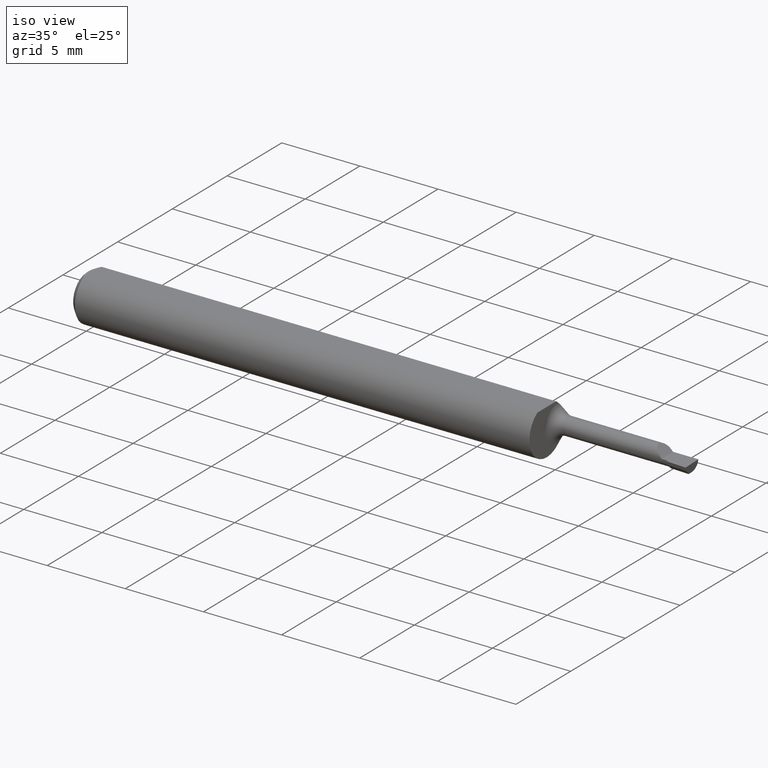
[diagram: clean part render]
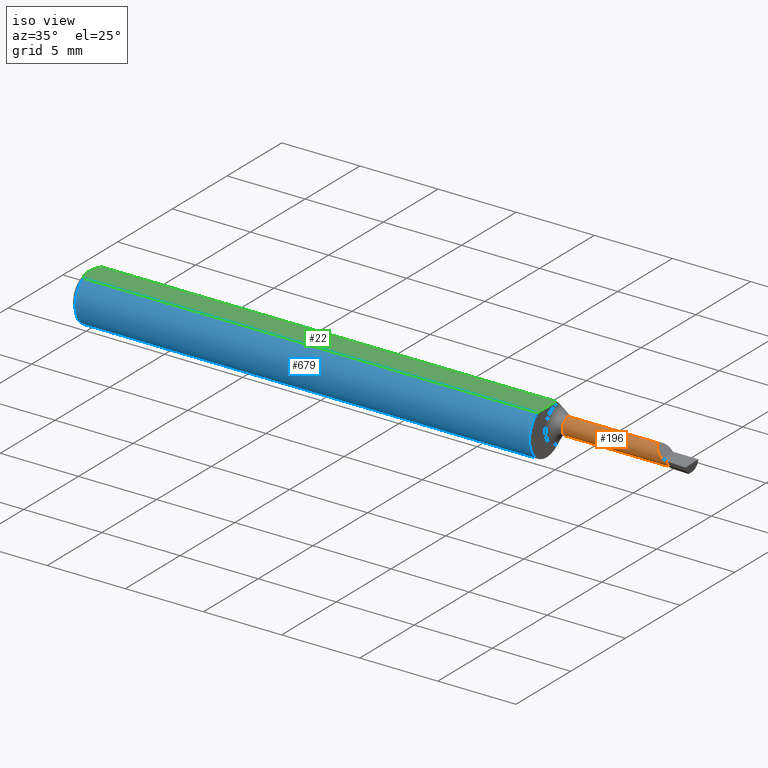
[diagram: same view with three faces highlighted in distinct colors, each labeled with its STEP entity id]
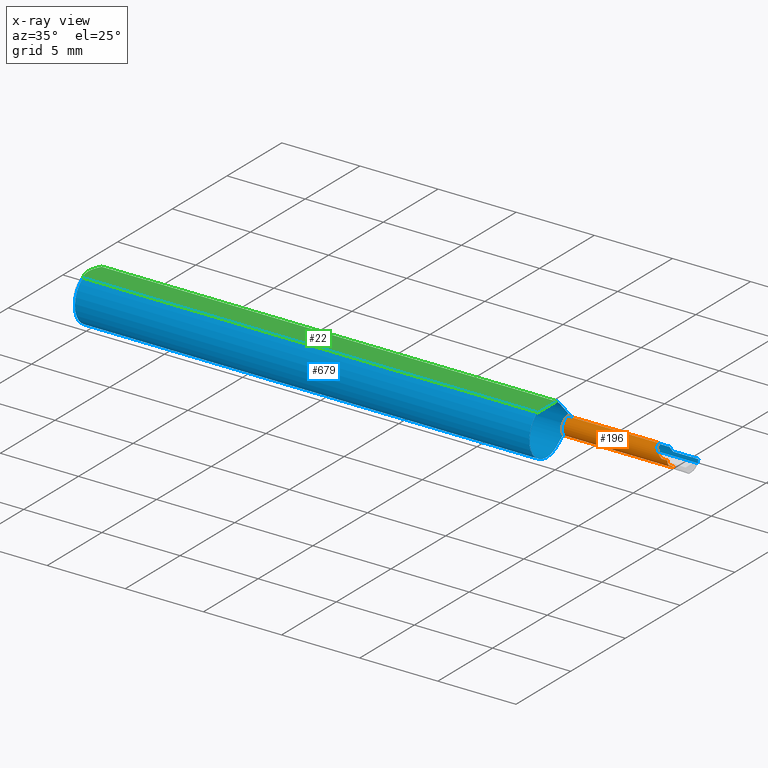
[diagram: x-ray of the same camera — body ghosted, the three highlighted faces saturated]
A machine part, iso view with three faces highlighted in distinct colors.
The next image is the same camera in x-ray (body ghosted, the three faces saturated) — at least one of them is partly hidden behind the body in this view.
Their STEP definitions:

[orange] entity #196 — the highlighted cylindrical surface (edge-blend (fillet) strip) has radius 0.5499 mm, axis along (-1, -0, -0).
#3 = CARTESIAN_POINT ( 'NONE',  ( 1.435000000000000053, 0.02034999999999996187, 7.469896857675718968E-18 ) ) ;
#6 = ORIENTED_EDGE ( 'NONE', *, *, #529, .F. ) ;
#10 = LINE ( 'NONE', #311, #53 ) ;
#16 = VECTOR ( 'NONE', #589, 39.37007874015748143 ) ;
#28 = CIRCLE ( 'NONE', #523, 0.02165000000000004768 ) ;
#31 = EDGE_LOOP ( 'NONE', ( #6, #560, #537, #143, #508, #377 ) ) ;
#36 = DIRECTION ( 'NONE',  ( 0.000000000000000000, 0.000000000000000000, 1.000000000000000000 ) ) ;
#53 = VECTOR ( 'NONE', #425, 39.37007874015748143 ) ;
#75 = VERTEX_POINT ( 'NONE', #220 ) ;
#81 = CARTESIAN_POINT ( 'NONE',  ( 0.000000000000000000, 0.04200000000000000955, 0.02165000000000002686 ) ) ;
#83 = CIRCLE ( 'NONE', #618, 0.02165000000000000951 ) ;
#87 = CARTESIAN_POINT ( 'NONE',  ( 1.413349999999999884, 0.04200000000000000955, 0.02165000000000002686 ) ) ;
#91 = EDGE_CURVE ( 'NONE', #434, #498, #10, .T. ) ;
#93 = DIRECTION ( 'NONE',  ( 0.000000000000000000, 0.000000000000000000, 1.000000000000000000 ) ) ;
#103 = CARTESIAN_POINT ( 'NONE',  ( 1.422317723625377450, 0.02034999999999997575, 0.01268227637462250416 ) ) ;
#140 = EDGE_CURVE ( 'NONE', #226, #498, #83, .T. ) ;
#143 = ORIENTED_EDGE ( 'NONE', *, *, #298, .F. ) ;
#148 = EDGE_CURVE ( 'NONE', #241, #75, #28, .T. ) ;
#171 = LINE ( 'NONE', #378, #16 ) ;
#196 = ADVANCED_FACE ( 'NONE', ( #301 ), #197, .T. ) ;
#197 = CYLINDRICAL_SURFACE ( 'NONE', #234, 0.02165000000000002686 ) ;
#220 = CARTESIAN_POINT ( 'NONE',  ( 1.185000000000000275, 0.04200000000000000955, 0.02165000000000004768 ) ) ;
#226 = VERTEX_POINT ( 'NONE', #340 ) ;
#234 = AXIS2_PLACEMENT_3D ( 'NONE', #667, #565, #93 ) ;
#238 = VERTEX_POINT ( 'NONE', #87 ) ;
#241 = VERTEX_POINT ( 'NONE', #550 ) ;
#247 = CARTESIAN_POINT ( 'NONE',  ( 1.413349999999999884, 0.04200000000000000955, 0.02165000000000002686 ) ) ;
#287 = DIRECTION ( 'NONE',  ( -1.000000000000000000, -0.000000000000000000, -0.000000000000000000 ) ) ;
#298 = EDGE_CURVE ( 'NONE', #238, #434, #359, .T. ) ;
#301 = FACE_OUTER_BOUND ( 'NONE', #31, .T. ) ;
#311 = CARTESIAN_POINT ( 'NONE',  ( 1.981042333644269815E-32, 0.02034999999999998269, 1.723822351771319809E-16 ) ) ;
#340 = CARTESIAN_POINT ( 'NONE',  ( 1.450000000000000178, 0.04200000000000000955, -0.02165000000000000951 ) ) ;
#353 = CARTESIAN_POINT ( 'NONE',  ( 1.185000000000000275, 0.04200000000000000955, 0.000000000000000000 ) ) ;
#355 = CARTESIAN_POINT ( 'NONE',  ( 1.413349999999999662, 0.02931772362537750018, 0.02165000000000002686 ) ) ;
#359 =( BOUNDED_CURVE ( )  B_SPLINE_CURVE ( 3, ( #247, #355, #103, #3 ),
 .UNSPECIFIED., .F., .T. ) 
 B_SPLINE_CURVE_WITH_KNOTS ( ( 4, 4 ),
 ( 0.000000000000000000, 1.570796326794896780 ),
 .UNSPECIFIED. ) 
 CURVE ( )  GEOMETRIC_REPRESENTATION_ITEM ( )  RATIONAL_B_SPLINE_CURVE ( ( 1.000000000000000000, 0.8047378541243649375, 0.8047378541243649375, 1.000000000000000000 ) ) 
 REPRESENTATION_ITEM ( '' )  );
#377 = ORIENTED_EDGE ( 'NONE', *, *, #148, .F. ) ;
#378 = CARTESIAN_POINT ( 'NONE',  ( 0.000000000000000000, 0.04200000000000000955, -0.02165000000000002686 ) ) ;
#425 = DIRECTION ( 'NONE',  ( 1.000000000000000000, 0.000000000000000000, 0.000000000000000000 ) ) ;
#434 = VERTEX_POINT ( 'NONE', #592 ) ;
#498 = VERTEX_POINT ( 'NONE', #546 ) ;
#508 = ORIENTED_EDGE ( 'NONE', *, *, #563, .T. ) ;
#523 = AXIS2_PLACEMENT_3D ( 'NONE', #353, #562, #36 ) ;
#529 = EDGE_CURVE ( 'NONE', #226, #241, #171, .T. ) ;
#537 = ORIENTED_EDGE ( 'NONE', *, *, #91, .F. ) ;
#546 = CARTESIAN_POINT ( 'NONE',  ( 1.450000000000000178, 0.02034999999999999656, 1.723822351771318823E-16 ) ) ;
#549 = LINE ( 'NONE', #81, #570 ) ;
#550 = CARTESIAN_POINT ( 'NONE',  ( 1.185000000000000275, 0.04200000000000000955, -0.02165000000000004768 ) ) ;
#560 = ORIENTED_EDGE ( 'NONE', *, *, #140, .T. ) ;
#562 = DIRECTION ( 'NONE',  ( -1.000000000000000000, -0.000000000000000000, -0.000000000000000000 ) ) ;
#563 = EDGE_CURVE ( 'NONE', #238, #75, #549, .T. ) ;
#565 = DIRECTION ( 'NONE',  ( -1.000000000000000000, -0.000000000000000000, -0.000000000000000000 ) ) ;
#570 = VECTOR ( 'NONE', #287, 39.37007874015748143 ) ;
#589 = DIRECTION ( 'NONE',  ( -1.000000000000000000, -0.000000000000000000, -0.000000000000000000 ) ) ;
#592 = CARTESIAN_POINT ( 'NONE',  ( 1.435000000000000053, 0.02034999999999996187, 7.469896857675718968E-18 ) ) ;
#609 = DIRECTION ( 'NONE',  ( -1.000000000000000000, -0.000000000000000000, -0.000000000000000000 ) ) ;
#617 = CARTESIAN_POINT ( 'NONE',  ( 1.450000000000000178, 0.04200000000000000955, 0.000000000000000000 ) ) ;
#618 = AXIS2_PLACEMENT_3D ( 'NONE', #617, #609, #664 ) ;
#664 = DIRECTION ( 'NONE',  ( 0.000000000000000000, 0.000000000000000000, 1.000000000000000000 ) ) ;
#667 = CARTESIAN_POINT ( 'NONE',  ( 0.000000000000000000, 0.04200000000000000955, 0.000000000000000000 ) ) ;

[blue] entity #679 — the highlighted cylindrical surface (edge-blend (fillet) strip) has radius 1.5837 mm, axis along (-1, -0, -0).
#2 = CIRCLE ( 'NONE', #352, 0.06235000000000000264 ) ;
#5 = CARTESIAN_POINT ( 'NONE',  ( 1.160002154187601331, 0.04179221831807067300, -0.04627107114684035627 ) ) ;
#11 = EDGE_LOOP ( 'NONE', ( #204, #123, #132, #439, #633, #126, #202, #164, #24, #61, #447, #655, #276, #601, #477 ) ) ;
#13 = CARTESIAN_POINT ( 'NONE',  ( 1.498307515265092205, 0.06234999999999984999, 4.252919012001033187E-19 ) ) ;
#21 = CARTESIAN_POINT ( 'NONE',  ( 1.164503367413919577, 0.05514048125192551331, -0.02935827858479101576 ) ) ;
#24 = ORIENTED_EDGE ( 'NONE', *, *, #44, .F. ) ;
#25 = B_SPLINE_CURVE_WITH_KNOTS ( 'NONE', 3,
 ( #207, #416, #628, #576, #262, #210, #213, #21, #534, #73, #174, #274 ),
 .UNSPECIFIED., .F., .F.,
 ( 4, 2, 2, 2, 2, 4 ),
 ( 1.956466010703177504E-07, 0.0001677086840062927419, 0.0003352217214115151282, 0.0006702477962219671650, 0.001005273871032419039, 0.001340299945842871347 ),
 .UNSPECIFIED. ) ;
#41 = CIRCLE ( 'NONE', #428, 0.06235000000000000264 ) ;
#42 = VERTEX_POINT ( 'NONE', #422 ) ;
#44 = EDGE_CURVE ( 'NONE', #69, #531, #41, .T. ) ;
#46 = CARTESIAN_POINT ( 'NONE',  ( 1.498307515265092205, 0.06234999999999984999, 4.252919012001033187E-19 ) ) ;
#54 = VECTOR ( 'NONE', #645, 39.37007874015748143 ) ;
#61 = ORIENTED_EDGE ( 'NONE', *, *, #561, .T. ) ;
#65 = CARTESIAN_POINT ( 'NONE',  ( 0.01500000000000185039, -0.03386738844380016850, 0.05235000000000000070 ) ) ;
#69 = VERTEX_POINT ( 'NONE', #376 ) ;
#73 = CARTESIAN_POINT ( 'NONE',  ( 1.160670077248453946, 0.04815584287052725176, -0.03982895007941800181 ) ) ;
#78 = LINE ( 'NONE', #283, #676 ) ;
#85 = VECTOR ( 'NONE', #363, 39.37007874015748143 ) ;
#96 = VERTEX_POINT ( 'NONE', #371 ) ;
#105 = DIRECTION ( 'NONE',  ( 0.000000000000000000, 0.000000000000000000, 1.000000000000000000 ) ) ;
#107 = EDGE_CURVE ( 'NONE', #272, #463, #343, .T. ) ;
#108 = CARTESIAN_POINT ( 'NONE',  ( 1.317500000000000115, 0.06169999999999998402, 0.008979560122856904483 ) ) ;
#111 = CIRCLE ( 'NONE', #514, 0.06235000000000000264 ) ;
#118 = DIRECTION ( 'NONE',  ( 0.000000000000000000, 0.000000000000000000, 1.000000000000000000 ) ) ;
#121 = CARTESIAN_POINT ( 'NONE',  ( 0.01500000000000000465, 0.000000000000000000, -0.06235000000000000264 ) ) ;
#123 = ORIENTED_EDGE ( 'NONE', *, *, #107, .T. ) ;
#124 = CARTESIAN_POINT ( 'NONE',  ( 1.175584872132278358, 0.06074967455721213411, 0.01413090964346022486 ) ) ;
#126 = ORIENTED_EDGE ( 'NONE', *, *, #406, .T. ) ;
#132 = ORIENTED_EDGE ( 'NONE', *, *, #499, .T. ) ;
#133 = CARTESIAN_POINT ( 'NONE',  ( 1.435000000000000053, 0.06234999999999984999, 7.469896857675718968E-18 ) ) ;
#145 = B_SPLINE_CURVE_WITH_KNOTS ( 'NONE', 3,
 ( #270, #387, #324, #328 ),
 .UNSPECIFIED., .F., .F.,
 ( 4, 4 ),
 ( 4.582666268723168045E-07, 2.170104865268451287E-05 ),
 .UNSPECIFIED. ) ;
#156 = CARTESIAN_POINT ( 'NONE',  ( 1.159999999999991482, 0.04158309226468336756, -0.04645910121876680593 ) ) ;
#160 = CARTESIAN_POINT ( 'NONE',  ( 0.01500000000000000465, 0.000000000000000000, 0.000000000000000000 ) ) ;
#164 = ORIENTED_EDGE ( 'NONE', *, *, #649, .F. ) ;
#168 = CARTESIAN_POINT ( 'NONE',  ( 1.171137345355671933, 0.05951103980767498414, 0.01888626235242482979 ) ) ;
#169 = CARTESIAN_POINT ( 'NONE',  ( 1.497630533948310916, 0.06213295572546700257, -0.006004651787055691192 ) ) ;
#174 = CARTESIAN_POINT ( 'NONE',  ( 1.160074194741583575, 0.04526839251566676381, -0.04310279966243765054 ) ) ;
#179 = CARTESIAN_POINT ( 'NONE',  ( 1.177175290836501409, 0.06107452517360630745, 0.01261403876978727141 ) ) ;
#180 = AXIS2_PLACEMENT_3D ( 'NONE', #225, #590, #118 ) ;
#182 = DIRECTION ( 'NONE',  ( -1.000000000000000000, -0.000000000000000000, -0.000000000000000000 ) ) ;
#189 = VECTOR ( 'NONE', #504, 39.37007874015748143 ) ;
#202 = ORIENTED_EDGE ( 'NONE', *, *, #519, .T. ) ;
#204 = ORIENTED_EDGE ( 'NONE', *, *, #659, .T. ) ;
#207 = CARTESIAN_POINT ( 'NONE',  ( 1.185000000000000275, 0.06170000000000000484, -0.008979560122856930504 ) ) ;
#210 = CARTESIAN_POINT ( 'NONE',  ( 1.171164219611748880, 0.05951808255707905643, -0.01885829980402589645 ) ) ;
#213 = CARTESIAN_POINT ( 'NONE',  ( 1.168638811239069764, 0.05833681936465647672, -0.02234271023335328982 ) ) ;
#215 = EDGE_CURVE ( 'NONE', #96, #297, #653, .T. ) ;
#221 = VERTEX_POINT ( 'NONE', #455 ) ;
#223 = CARTESIAN_POINT ( 'NONE',  ( 1.160006460274299878, 0.04199999999999771277, 0.04608169376227606862 ) ) ;
#225 = CARTESIAN_POINT ( 'NONE',  ( 0.000000000000000000, 0.000000000000000000, 0.000000000000000000 ) ) ;
#237 = B_SPLINE_CURVE_WITH_KNOTS ( 'NONE', 3,
 ( #462, #5, #156, #530 ),
 .UNSPECIFIED., .F., .F.,
 ( 4, 4 ),
 ( 0.001340299945842871347, 0.001361598575378359429 ),
 .UNSPECIFIED. ) ;
#252 = CARTESIAN_POINT ( 'NONE',  ( 1.160000000000000142, 0.000000000000000000, 0.000000000000000000 ) ) ;
#258 = CARTESIAN_POINT ( 'NONE',  ( 1.160000000000000142, -0.03386738844380016850, 0.05235000000000000070 ) ) ;
#262 = CARTESIAN_POINT ( 'NONE',  ( 1.175565359643935714, 0.06074446073968790827, -0.01415138756931504788 ) ) ;
#266 = EDGE_CURVE ( 'NONE', #487, #268, #412, .T. ) ;
#268 = VERTEX_POINT ( 'NONE', #133 ) ;
#270 = CARTESIAN_POINT ( 'NONE',  ( 1.160000000000000142, 0.04137261904761900533, 0.04664578108618819968 ) ) ;
#272 = VERTEX_POINT ( 'NONE', #46 ) ;
#274 = CARTESIAN_POINT ( 'NONE',  ( 1.160006460274302986, 0.04200000000015000762, -0.04608169376213724217 ) ) ;
#276 = ORIENTED_EDGE ( 'NONE', *, *, #475, .T. ) ;
#283 = CARTESIAN_POINT ( 'NONE',  ( 1.317500000000000115, 0.06169999999999998402, -0.008979560122856904483 ) ) ;
#292 = CARTESIAN_POINT ( 'NONE',  ( 1.160000000000000142, 0.04137261904761900533, 0.04664578108618819968 ) ) ;
#296 = CARTESIAN_POINT ( 'NONE',  ( 1.426020439877143220, 0.06170000000000000484, 0.008979560122856816012 ) ) ;
#297 = VERTEX_POINT ( 'NONE', #292 ) ;
#300 = DIRECTION ( 'NONE',  ( 0.000000000000000000, 0.000000000000000000, 1.000000000000000000 ) ) ;
#304 = CARTESIAN_POINT ( 'NONE',  ( 1.160000000000000142, 0.000000000000000000, 0.000000000000000000 ) ) ;
#316 = CARTESIAN_POINT ( 'NONE',  ( 1.185000000000000275, 0.06170000000000000484, -0.008979560122856930504 ) ) ;
#324 = CARTESIAN_POINT ( 'NONE',  ( 1.160002158776226588, 0.04179243973303148341, 0.04627086934374564919 ) ) ;
#328 = CARTESIAN_POINT ( 'NONE',  ( 1.160006460274299878, 0.04199999999999771277, 0.04608169376227606862 ) ) ;
#336 = CARTESIAN_POINT ( 'NONE',  ( 1.426020439877143220, 0.06170000000000000484, 0.008979560122856816012 ) ) ;
#339 = EDGE_CURVE ( 'NONE', #482, #487, #567, .T. ) ;
#343 =( BOUNDED_CURVE ( )  B_SPLINE_CURVE ( 3, ( #13, #429, #169, #587 ),
 .UNSPECIFIED., .F., .T. ) 
 B_SPLINE_CURVE_WITH_KNOTS ( ( 4, 4 ),
 ( 5.009623706381322705, 5.154144874936619658 ),
 .UNSPECIFIED. ) 
 CURVE ( )  GEOMETRIC_REPRESENTATION_ITEM ( )  RATIONAL_B_SPLINE_CURVE ( ( 1.000000000000000000, 0.9982602265499040950, 0.9982602265499040950, 1.000000000000000000 ) ) 
 REPRESENTATION_ITEM ( '' )  );
#346 = VERTEX_POINT ( 'NONE', #316 ) ;
#352 = AXIS2_PLACEMENT_3D ( 'NONE', #304, #461, #105 ) ;
#363 = DIRECTION ( 'NONE',  ( 1.000000000000000000, 0.000000000000000000, 0.000000000000000000 ) ) ;
#366 = CARTESIAN_POINT ( 'NONE',  ( 1.981042333644269815E-32, 0.06234999999999999570, 1.723822351771319809E-16 ) ) ;
#371 = CARTESIAN_POINT ( 'NONE',  ( 1.160000000000000142, 0.03386738844375224156, 0.05235000000000000070 ) ) ;
#374 = CARTESIAN_POINT ( 'NONE',  ( 1.182762534547911804, 0.06169999999999994933, 0.008979560122857185508 ) ) ;
#376 = CARTESIAN_POINT ( 'NONE',  ( 0.01500000000000000465, 0.03386738844375223462, 0.05234999999999997988 ) ) ;
#381 = CARTESIAN_POINT ( 'NONE',  ( 1.168668118509244236, 0.05835572319906700417, 0.02229702727151923816 ) ) ;
#387 = CARTESIAN_POINT ( 'NONE',  ( 1.160000000000000142, 0.04158331714061497264, 0.04645890176435896884 ) ) ;
#406 = EDGE_CURVE ( 'NONE', #221, #591, #2, .T. ) ;
#412 =( BOUNDED_CURVE ( )  B_SPLINE_CURVE ( 3, ( #296, #558, #670, #603 ),
 .UNSPECIFIED., .F., .T. ) 
 B_SPLINE_CURVE_WITH_KNOTS ( ( 4, 4 ),
 ( 1.426275158239600493, 1.570796326794896558 ),
 .UNSPECIFIED. ) 
 CURVE ( )  GEOMETRIC_REPRESENTATION_ITEM ( )  RATIONAL_B_SPLINE_CURVE ( ( 1.000000000000000000, 0.9982602265499040950, 0.9982602265499040950, 1.000000000000000000 ) ) 
 REPRESENTATION_ITEM ( '' )  );
#413 = DIRECTION ( 'NONE',  ( 1.000000000000000000, 0.000000000000000000, 0.000000000000000000 ) ) ;
#416 = CARTESIAN_POINT ( 'NONE',  ( 1.182753018252281185, 0.06170000000000001178, -0.008979560122856961729 ) ) ;
#419 = CYLINDRICAL_SURFACE ( 'NONE', #180, 0.06235000000000000264 ) ;
#420 = CARTESIAN_POINT ( 'NONE',  ( 1.160006460274302986, 0.04200000000015000762, -0.04608169376213724217 ) ) ;
#422 = CARTESIAN_POINT ( 'NONE',  ( 1.160006460274299878, 0.04199999999999771277, 0.04608169376227606862 ) ) ;
#427 = LINE ( 'NONE', #639, #54 ) ;
#428 = AXIS2_PLACEMENT_3D ( 'NONE', #160, #182, #580 ) ;
#429 = CARTESIAN_POINT ( 'NONE',  ( 1.497964787728959912, 0.06235000000000000264, -0.003006248537069734598 ) ) ;
#430 = EDGE_CURVE ( 'NONE', #346, #575, #25, .T. ) ;
#436 = EDGE_CURVE ( 'NONE', #297, #42, #145, .T. ) ;
#439 = ORIENTED_EDGE ( 'NONE', *, *, #430, .T. ) ;
#445 = DIRECTION ( 'NONE',  ( -1.000000000000000000, -0.000000000000000000, -0.000000000000000000 ) ) ;
#447 = ORIENTED_EDGE ( 'NONE', *, *, #215, .T. ) ;
#454 = VERTEX_POINT ( 'NONE', #65 ) ;
#455 = CARTESIAN_POINT ( 'NONE',  ( 1.160000000000000142, 0.04137261904761900533, -0.04664578108618819968 ) ) ;
#461 = DIRECTION ( 'NONE',  ( -1.000000000000000000, -0.000000000000000000, -0.000000000000000000 ) ) ;
#462 = CARTESIAN_POINT ( 'NONE',  ( 1.160006460274302986, 0.04200000000015000762, -0.04608169376213724217 ) ) ;
#463 = VERTEX_POINT ( 'NONE', #483 ) ;
#475 = EDGE_CURVE ( 'NONE', #42, #482, #627, .T. ) ;
#477 = ORIENTED_EDGE ( 'NONE', *, *, #266, .T. ) ;
#479 = AXIS2_PLACEMENT_3D ( 'NONE', #252, #445, #300 ) ;
#482 = VERTEX_POINT ( 'NONE', #542 ) ;
#483 = CARTESIAN_POINT ( 'NONE',  ( 1.497306498500703631, 0.06169999999999998402, -0.008979560122856904483 ) ) ;
#485 = CARTESIAN_POINT ( 'NONE',  ( 1.185000000000000275, 0.06169999999999831869, 0.008979560122860611587 ) ) ;
#487 = VERTEX_POINT ( 'NONE', #336 ) ;
#489 = DIRECTION ( 'NONE',  ( -1.000000000000000000, -0.000000000000000000, -0.000000000000000000 ) ) ;
#499 = EDGE_CURVE ( 'NONE', #463, #346, #78, .T. ) ;
#502 = VECTOR ( 'NONE', #413, 39.37007874015748143 ) ;
#504 = DIRECTION ( 'NONE',  ( 1.000000000000000000, 0.000000000000000000, 0.000000000000000000 ) ) ;
#514 = AXIS2_PLACEMENT_3D ( 'NONE', #646, #517, #525 ) ;
#517 = DIRECTION ( 'NONE',  ( -1.000000000000000000, -0.000000000000000000, -0.000000000000000000 ) ) ;
#519 = EDGE_CURVE ( 'NONE', #591, #454, #427, .T. ) ;
#525 = DIRECTION ( 'NONE',  ( 0.000000000000000000, 0.000000000000000000, 1.000000000000000000 ) ) ;
#530 = CARTESIAN_POINT ( 'NONE',  ( 1.160000000000000142, 0.04137261904761900533, -0.04664578108618819968 ) ) ;
#531 = VERTEX_POINT ( 'NONE', #121 ) ;
#534 = CARTESIAN_POINT ( 'NONE',  ( 1.162870761441107348, 0.05308346109616995240, -0.03297691048371718253 ) ) ;
#535 = LINE ( 'NONE', #366, #85 ) ;
#542 = CARTESIAN_POINT ( 'NONE',  ( 1.185000000000000275, 0.06169999999999831869, 0.008979560122860611587 ) ) ;
#558 = CARTESIAN_POINT ( 'NONE',  ( 1.428995348212944494, 0.06213295572546700951, 0.006004651787055659100 ) ) ;
#561 = EDGE_CURVE ( 'NONE', #69, #96, #669, .T. ) ;
#567 = LINE ( 'NONE', #108, #502 ) ;
#575 = VERTEX_POINT ( 'NONE', #420 ) ;
#576 = CARTESIAN_POINT ( 'NONE',  ( 1.177152351167835453, 0.06107065959994136678, -0.01263339011355590902 ) ) ;
#580 = DIRECTION ( 'NONE',  ( 0.000000000000000000, 0.000000000000000000, 1.000000000000000000 ) ) ;
#587 = CARTESIAN_POINT ( 'NONE',  ( 1.497306498500703631, 0.06169999999999998402, -0.008979560122856904483 ) ) ;
#590 = DIRECTION ( 'NONE',  ( -1.000000000000000000, -0.000000000000000000, -0.000000000000000000 ) ) ;
#591 = VERTEX_POINT ( 'NONE', #258 ) ;
#595 = CARTESIAN_POINT ( 'NONE',  ( 1.180731329014794495, 0.06154711322920823624, 0.01005805410694262346 ) ) ;
#598 = CARTESIAN_POINT ( 'NONE',  ( 0.000000000000000000, 0.03386738844375223462, 0.05234999999999997988 ) ) ;
#601 = ORIENTED_EDGE ( 'NONE', *, *, #339, .T. ) ;
#603 = CARTESIAN_POINT ( 'NONE',  ( 1.435000000000000053, 0.06234999999999984999, 7.469896857675718968E-18 ) ) ;
#627 = B_SPLINE_CURVE_WITH_KNOTS ( 'NONE', 3,
 ( #223, #651, #648, #381, #168, #124, #179, #595, #374, #485 ),
 .UNSPECIFIED., .F., .F.,
 ( 4, 2, 2, 2, 4 ),
 ( 2.170104865268451287E-05, 0.0006888475183558678046, 0.001022420753207459523, 0.001189207370633258961, 0.001355993988059058398 ),
 .UNSPECIFIED. ) ;
#628 = CARTESIAN_POINT ( 'NONE',  ( 1.180717554203212005, 0.06154609117734802237, -0.01006512148574299423 ) ) ;
#633 = ORIENTED_EDGE ( 'NONE', *, *, #644, .T. ) ;
#635 = FACE_OUTER_BOUND ( 'NONE', #11, .T. ) ;
#639 = CARTESIAN_POINT ( 'NONE',  ( 0.000000000000000000, -0.03386738844375222768, 0.05234999999999997988 ) ) ;
#644 = EDGE_CURVE ( 'NONE', #575, #221, #237, .T. ) ;
#645 = DIRECTION ( 'NONE',  ( -1.000000000000000000, -0.000000000000000000, -0.000000000000000000 ) ) ;
#646 = CARTESIAN_POINT ( 'NONE',  ( 0.01500000000000000465, 0.000000000000000000, 0.000000000000000000 ) ) ;
#648 = CARTESIAN_POINT ( 'NONE',  ( 1.162421881751718900, 0.05353913003532601023, 0.03288138494637238285 ) ) ;
#649 = EDGE_CURVE ( 'NONE', #531, #454, #111, .T. ) ;
#651 = CARTESIAN_POINT ( 'NONE',  ( 1.160141552243445950, 0.04851859531340436960, 0.04014048412325036536 ) ) ;
#653 = CIRCLE ( 'NONE', #479, 0.06235000000000000264 ) ;
#655 = ORIENTED_EDGE ( 'NONE', *, *, #436, .T. ) ;
#659 = EDGE_CURVE ( 'NONE', #268, #272, #535, .T. ) ;
#669 = LINE ( 'NONE', #598, #189 ) ;
#670 = CARTESIAN_POINT ( 'NONE',  ( 1.431993751462930842, 0.06235000000000000958, 0.003006248537069719420 ) ) ;
#676 = VECTOR ( 'NONE', #489, 39.37007874015748143 ) ;
#679 = ADVANCED_FACE ( 'NONE', ( #635 ), #419, .T. ) ;

[green] entity #22 — the highlighted planar face has unit normal (0, -0, -1).
#1 = DIRECTION ( 'NONE',  ( 0.000000000000000000, -7.598598113218357399E-17, -1.000000000000000000 ) ) ;
#22 = ADVANCED_FACE ( 'NONE', ( #637 ), #632, .F. ) ;
#50 = CARTESIAN_POINT ( 'NONE',  ( 0.004999999999989933504, 7.898418140378181697E-16, 0.05235000000000000070 ) ) ;
#54 = VECTOR ( 'NONE', #645, 39.37007874015748143 ) ;
#65 = CARTESIAN_POINT ( 'NONE',  ( 0.01500000000000185039, -0.03386738844380016850, 0.05235000000000000070 ) ) ;
#69 = VERTEX_POINT ( 'NONE', #376 ) ;
#80 = ORIENTED_EDGE ( 'NONE', *, *, #624, .F. ) ;
#96 = VERTEX_POINT ( 'NONE', #371 ) ;
#129 = ORIENTED_EDGE ( 'NONE', *, *, #411, .T. ) ;
#159 = CARTESIAN_POINT ( 'NONE',  ( 0.004999999999989933504, 7.898418140378181697E-16, 0.05235000000000000070 ) ) ;
#163 = ORIENTED_EDGE ( 'NONE', *, *, #519, .F. ) ;
#189 = VECTOR ( 'NONE', #504, 39.37007874015748143 ) ;
#192 = ORIENTED_EDGE ( 'NONE', *, *, #384, .F. ) ;
#254 = CARTESIAN_POINT ( 'NONE',  ( 0.004999999999999268051, 0.005945714695019509340, 0.05235000000000000070 ) ) ;
#255 = AXIS2_PLACEMENT_3D ( 'NONE', #629, #1, #319 ) ;
#258 = CARTESIAN_POINT ( 'NONE',  ( 1.160000000000000142, -0.03386738844380016850, 0.05235000000000000070 ) ) ;
#259 = CARTESIAN_POINT ( 'NONE',  ( 0.009669996313769781138, 0.02323004575534280344, 0.05234999999999997988 ) ) ;
#265 = CARTESIAN_POINT ( 'NONE',  ( 0.006064493299689846517, 0.01189382783781396842, 0.05235000000000000764 ) ) ;
#282 = B_SPLINE_CURVE_WITH_KNOTS ( 'NONE', 3,
 ( #468, #631, #471, #317, #586, #159 ),
 .UNSPECIFIED., .F., .F.,
 ( 4, 2, 4 ),
 ( 0.002133667072902290657, 0.002585433046183636171, 0.003037199019464981685 ),
 .UNSPECIFIED. ) ;
#317 = CARTESIAN_POINT ( 'NONE',  ( 0.006057557792978136152, -0.01187252718384440922, 0.05234999999999998682 ) ) ;
#319 = DIRECTION ( 'NONE',  ( 0.000000000000000000, 1.000000000000000000, -7.598598113218357399E-17 ) ) ;
#370 = VECTOR ( 'NONE', #623, 39.37007874015748143 ) ;
#371 = CARTESIAN_POINT ( 'NONE',  ( 1.160000000000000142, 0.03386738844375224156, 0.05235000000000000070 ) ) ;
#376 = CARTESIAN_POINT ( 'NONE',  ( 0.01500000000000000465, 0.03386738844375223462, 0.05234999999999997988 ) ) ;
#384 = EDGE_CURVE ( 'NONE', #541, #69, #509, .T. ) ;
#411 = EDGE_CURVE ( 'NONE', #591, #96, #458, .T. ) ;
#427 = LINE ( 'NONE', #639, #54 ) ;
#454 = VERTEX_POINT ( 'NONE', #65 ) ;
#458 = LINE ( 'NONE', #684, #370 ) ;
#468 = CARTESIAN_POINT ( 'NONE',  ( 0.01500000000000185039, -0.03386738844380016850, 0.05235000000000000070 ) ) ;
#471 = CARTESIAN_POINT ( 'NONE',  ( 0.009678036133109300596, -0.02325481837211496039, 0.05235000000000000070 ) ) ;
#504 = DIRECTION ( 'NONE',  ( 1.000000000000000000, 0.000000000000000000, 0.000000000000000000 ) ) ;
#509 = B_SPLINE_CURVE_WITH_KNOTS ( 'NONE', 3,
 ( #50, #254, #265, #259, #620, #625 ),
 .UNSPECIFIED., .F., .F.,
 ( 4, 2, 4 ),
 ( 0.003037199019464981685, 0.003488061124369675782, 0.003938923229274369879 ),
 .UNSPECIFIED. ) ;
#519 = EDGE_CURVE ( 'NONE', #591, #454, #427, .T. ) ;
#536 = EDGE_LOOP ( 'NONE', ( #163, #129, #638, #192, #80 ) ) ;
#541 = VERTEX_POINT ( 'NONE', #616 ) ;
#561 = EDGE_CURVE ( 'NONE', #69, #96, #669, .T. ) ;
#586 = CARTESIAN_POINT ( 'NONE',  ( 0.004999999999998882075, -0.005957634400466951113, 0.05235000000000000070 ) ) ;
#591 = VERTEX_POINT ( 'NONE', #258 ) ;
#598 = CARTESIAN_POINT ( 'NONE',  ( 0.000000000000000000, 0.03386738844375223462, 0.05234999999999997988 ) ) ;
#616 = CARTESIAN_POINT ( 'NONE',  ( 0.004999999999989933504, 7.898418140378181697E-16, 0.05235000000000000070 ) ) ;
#620 = CARTESIAN_POINT ( 'NONE',  ( 0.01218518006020414754, 0.02868529347538064517, 0.05234999999999998682 ) ) ;
#623 = DIRECTION ( 'NONE',  ( 0.000000000000000000, 1.000000000000000000, -7.598598113218357399E-17 ) ) ;
#624 = EDGE_CURVE ( 'NONE', #454, #541, #282, .T. ) ;
#625 = CARTESIAN_POINT ( 'NONE',  ( 0.01500000000000000465, 0.03386738844375223462, 0.05234999999999997988 ) ) ;
#629 = CARTESIAN_POINT ( 'NONE',  ( 1.500000000000000222, 0.1123499999999999915, 0.05234999999999998682 ) ) ;
#631 = CARTESIAN_POINT ( 'NONE',  ( 0.01216137397042176167, -0.02864146636719541034, 0.05235000000000000070 ) ) ;
#632 = PLANE ( 'NONE',  #255 ) ;
#637 = FACE_OUTER_BOUND ( 'NONE', #536, .T. ) ;
#638 = ORIENTED_EDGE ( 'NONE', *, *, #561, .F. ) ;
#639 = CARTESIAN_POINT ( 'NONE',  ( 0.000000000000000000, -0.03386738844375222768, 0.05234999999999997988 ) ) ;
#645 = DIRECTION ( 'NONE',  ( -1.000000000000000000, -0.000000000000000000, -0.000000000000000000 ) ) ;
#669 = LINE ( 'NONE', #598, #189 ) ;
#684 = CARTESIAN_POINT ( 'NONE',  ( 1.160000000000000142, 0.1123499999999999915, 0.05234999999999998682 ) ) ;